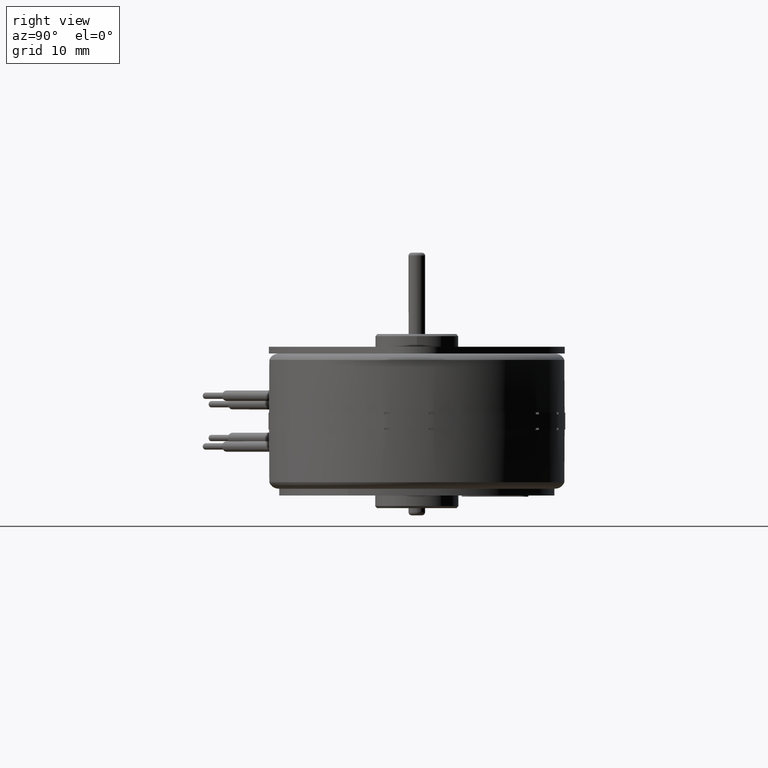
[diagram: clean part render]
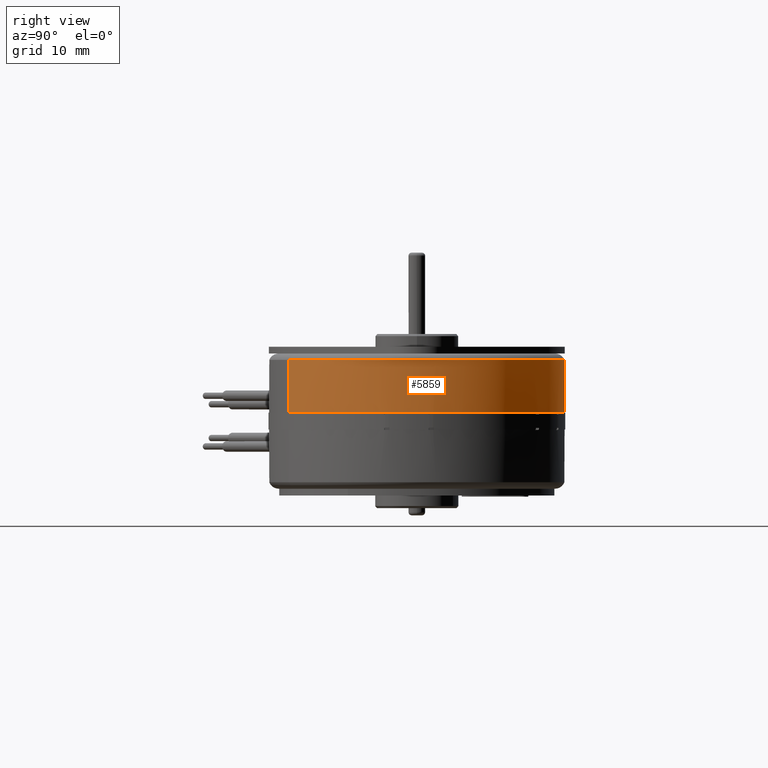
[diagram: same view with one face highlighted and labeled with its STEP entity id]
A machine part, right view. The second image highlights one B-rep face of the part: STEP entity #5859.
In plain terms, the highlighted cylindrical surface (partial cylindrical patch) has radius 17.7673 mm, axis along (0, 0, -1).
Its self-contained STEP definition (entity closure, byte-faithful):
#1360=CARTESIAN_POINT('',(0.E0,0.E0,4.000000000002E-2));
#1361=DIRECTION('',(0.E0,0.E0,1.E0));
#1362=DIRECTION('',(2.971786792448E-1,9.548218852762E-1,0.E0));
#1363=AXIS2_PLACEMENT_3D('',#1360,#1361,#1362);
#1408=CARTESIAN_POINT('',(0.E0,0.E0,4.000000000002E-2));
#1409=DIRECTION('',(0.E0,0.E0,1.E0));
#1410=DIRECTION('',(5.684213785240E-1,8.227375866197E-1,0.E0));
#1411=AXIS2_PLACEMENT_3D('',#1408,#1409,#1410);
#1426=DIRECTION('',(6.661338147766E-13,-3.330669073883E-13,1.E0));
#1427=VECTOR('',#1426,1.999999999996E-3);
#1428=CARTESIAN_POINT('',(6.947060848518E-1,8.175393366622E-2,
4.000000000001E-2));
#1429=LINE('',#1428,#1427);
#1430=DIRECTION('',(0.E0,4.163336342356E-13,-1.E0));
#1431=VECTOR('',#1430,1.999999999994E-3);
#1432=CARTESIAN_POINT('',(6.972072767762E-1,5.658854310196E-2,4.2E-2));
#1433=LINE('',#1432,#1431);
#1434=DIRECTION('',(1.609823385710E-12,9.103828801946E-12,1.E0));
#1435=VECTOR('',#1434,1.999999999996E-3);
#1436=CARTESIAN_POINT('',(6.874727889150E-1,-1.291565503624E-1,
4.000000000001E-2));
#1437=LINE('',#1436,#1435);
#1438=DIRECTION('',(-6.106226635455E-13,-2.317590563911E-12,-1.E0));
#1439=VECTOR('',#1438,1.999999999994E-3);
#1440=CARTESIAN_POINT('',(6.823547991785E-1,-1.539226365358E-1,4.2E-2));
#1441=LINE('',#1440,#1439);
#1442=DIRECTION('',(1.221245327090E-11,-3.275157922651E-12,1.E0));
#1443=VECTOR('',#1442,1.999999999996E-3);
#1444=CARTESIAN_POINT('',(2.078764861318E-1,6.678979087507E-1,
4.000000000001E-2));
#1445=LINE('',#1444,#1443);
#1446=DIRECTION('',(-5.023759186443E-12,1.831867990637E-12,-1.E0));
#1447=VECTOR('',#1446,1.999999999994E-3);
#1448=CARTESIAN_POINT('',(2.318835407785E-1,6.599471747921E-1,4.2E-2));
#1449=LINE('',#1448,#1447);
#1450=DIRECTION('',(3.330669073883E-13,2.220446049255E-13,1.E0));
#1451=VECTOR('',#1450,1.999999999996E-3);
#1452=CARTESIAN_POINT('',(3.976107542776E-1,5.755049418405E-1,
4.000000000001E-2));
#1453=LINE('',#1452,#1451);
#1454=DIRECTION('',(1.043609643151E-11,-7.882583474860E-12,-1.E0));
#1455=VECTOR('',#1454,1.999999999994E-3);
#1456=CARTESIAN_POINT('',(4.181540258403E-1,5.607561508121E-1,4.2E-2));
#1457=LINE('',#1456,#1455);
#1458=CARTESIAN_POINT('',(0.E0,0.E0,4.000000000002E-2));
#1459=DIRECTION('',(0.E0,0.E0,1.E0));
#1460=DIRECTION('',(9.931466545415E-1,1.168748158202E-1,0.E0));
#1461=AXIS2_PLACEMENT_3D('',#1458,#1459,#1460);
#1497=CARTESIAN_POINT('',(0.E0,0.E0,4.200000000001E-2));
#1498=DIRECTION('',(0.E0,0.E0,1.E0));
#1499=DIRECTION('',(5.977898868338E-1,8.016528246063E-1,0.E0));
#1500=AXIS2_PLACEMENT_3D('',#1497,#1498,#1499);
#1563=CARTESIAN_POINT('',(0.E0,0.E0,4.000000000002E-2));
#1564=DIRECTION('',(0.E0,0.E0,1.E0));
#1565=DIRECTION('',(9.828059884417E-1,-1.846412442636E-1,0.E0));
#1566=AXIS2_PLACEMENT_3D('',#1563,#1564,#1565);
#1603=CARTESIAN_POINT('',(0.E0,0.E0,4.000000000002E-2));
#1604=DIRECTION('',(0.E0,0.E0,1.E0));
#1605=DIRECTION('',(5.E-1,-8.660254037844E-1,0.E0));
#1606=AXIS2_PLACEMENT_3D('',#1603,#1604,#1605);
#1673=DIRECTION('',(2.258063730110E-13,9.833144519297E-14,1.E0));
#1674=VECTOR('',#1673,2.495227116419E-1);
#1675=CARTESIAN_POINT('',(-3.497499999999E-1,6.057847699472E-1,
4.000000000001E-2));
#1676=LINE('',#1675,#1674);
#1677=DIRECTION('',(-9.521687453075E-14,-8.676303987615E-14,-1.E0));
#1678=VECTOR('',#1677,2.495227116419E-1);
#1679=CARTESIAN_POINT('',(3.4975E-1,-6.057847699472E-1,2.895227116419E-1));
#1680=LINE('',#1679,#1678);
#2604=CARTESIAN_POINT('',(0.E0,0.E0,2.895227116419E-1));
#2605=DIRECTION('',(0.E0,0.E0,-1.E0));
#2606=DIRECTION('',(-4.999999999999E-1,8.660254037845E-1,0.E0));
#2607=AXIS2_PLACEMENT_3D('',#2604,#2605,#2606);
#2619=CARTESIAN_POINT('',(0.E0,0.E0,4.200000000001E-2));
#2620=DIRECTION('',(0.E0,0.E0,1.E0));
#2621=DIRECTION('',(9.754893483609E-1,-2.200466569489E-1,0.E0));
#2622=AXIS2_PLACEMENT_3D('',#2619,#2620,#2621);
#2633=CARTESIAN_POINT('',(0.E0,0.E0,4.200000000001E-2));
#2634=DIRECTION('',(0.E0,0.E0,1.E0));
#2635=DIRECTION('',(9.967223399230E-1,8.089856054603E-2,0.E0));
#2636=AXIS2_PLACEMENT_3D('',#2633,#2634,#2635);
#2647=CARTESIAN_POINT('',(0.E0,0.E0,4.200000000001E-2));
#2648=DIRECTION('',(0.E0,0.E0,1.E0));
#2649=DIRECTION('',(3.314989861022E-1,9.434555751137E-1,0.E0));
#2650=AXIS2_PLACEMENT_3D('',#2647,#2648,#2649);
#3528=CARTESIAN_POINT('',(-3.497499999999E-1,6.057847699473E-1,
2.895227116419E-1));
#3529=VERTEX_POINT('',#3528);
#3530=CARTESIAN_POINT('',(3.4975E-1,-6.057847699472E-1,2.895227116419E-1));
#3531=VERTEX_POINT('',#3530);
#3533=CARTESIAN_POINT('',(3.4975E-1,-6.057847699472E-1,4.000000000002E-2));
#3535=VERTEX_POINT('',#3533);
#3575=CARTESIAN_POINT('',(-3.4975E-1,6.057847699472E-1,4.000000000002E-2));
#3576=VERTEX_POINT('',#3575);
#3577=CARTESIAN_POINT('',(6.823547991785E-1,-1.539226365358E-1,
4.000000000002E-2));
#3578=VERTEX_POINT('',#3577);
#3585=CARTESIAN_POINT('',(6.947060848518E-1,8.175393366622E-2,
4.000000000002E-2));
#3586=CARTESIAN_POINT('',(4.181540258403E-1,5.607561508121E-1,
4.000000000002E-2));
#3587=VERTEX_POINT('',#3585);
#3588=VERTEX_POINT('',#3586);
#3589=CARTESIAN_POINT('',(6.947060848518E-1,8.175393366622E-2,4.2E-2));
#3590=VERTEX_POINT('',#3589);
#3591=CARTESIAN_POINT('',(6.972072767761E-1,5.658854310195E-2,
4.200000000001E-2));
#3592=VERTEX_POINT('',#3591);
#3593=CARTESIAN_POINT('',(6.972072767762E-1,5.658854310196E-2,
4.000000000001E-2));
#3594=VERTEX_POINT('',#3593);
#3595=CARTESIAN_POINT('',(6.874727889149E-1,-1.291565503624E-1,
4.000000000002E-2));
#3596=VERTEX_POINT('',#3595);
#3597=CARTESIAN_POINT('',(6.874727889150E-1,-1.291565503624E-1,4.2E-2));
#3598=VERTEX_POINT('',#3597);
#3599=CARTESIAN_POINT('',(6.823547991785E-1,-1.539226365358E-1,
4.200000000001E-2));
#3600=VERTEX_POINT('',#3599);
#3601=CARTESIAN_POINT('',(2.078764861317E-1,6.678979087507E-1,
4.000000000002E-2));
#3602=VERTEX_POINT('',#3601);
#3603=CARTESIAN_POINT('',(2.078764861318E-1,6.678979087507E-1,4.2E-2));
#3604=VERTEX_POINT('',#3603);
#3605=CARTESIAN_POINT('',(2.318835407785E-1,6.599471747921E-1,
4.200000000001E-2));
#3606=VERTEX_POINT('',#3605);
#3607=CARTESIAN_POINT('',(2.318835407785E-1,6.599471747921E-1,
4.000000000001E-2));
#3608=VERTEX_POINT('',#3607);
#3609=CARTESIAN_POINT('',(3.976107542776E-1,5.755049418405E-1,
4.000000000002E-2));
#3610=VERTEX_POINT('',#3609);
#3611=CARTESIAN_POINT('',(3.976107542776E-1,5.755049418405E-1,4.2E-2));
#3612=VERTEX_POINT('',#3611);
#3613=CARTESIAN_POINT('',(4.181540258402E-1,5.607561508121E-1,
4.200000000001E-2));
#3614=VERTEX_POINT('',#3613);
#5816=CARTESIAN_POINT('',(0.E0,0.E0,2.945131658747E-1));
#5817=DIRECTION('',(0.E0,0.E0,-1.E0));
#5818=DIRECTION('',(5.E-1,-8.660254037844E-1,0.E0));
#5819=AXIS2_PLACEMENT_3D('',#5816,#5817,#5818);
#5820=CYLINDRICAL_SURFACE('',#5819,6.995E-1);
#5822=ORIENTED_EDGE('',*,*,#5821,.F.);
#5824=ORIENTED_EDGE('',*,*,#5823,.T.);
#5826=ORIENTED_EDGE('',*,*,#5825,.F.);
#5828=ORIENTED_EDGE('',*,*,#5827,.T.);
#5830=ORIENTED_EDGE('',*,*,#5829,.F.);
#5832=ORIENTED_EDGE('',*,*,#5831,.T.);
#5834=ORIENTED_EDGE('',*,*,#5833,.F.);
#5836=ORIENTED_EDGE('',*,*,#5835,.T.);
#5838=ORIENTED_EDGE('',*,*,#5837,.F.);
#5840=ORIENTED_EDGE('',*,*,#5839,.F.);
#5842=ORIENTED_EDGE('',*,*,#5841,.F.);
#5844=ORIENTED_EDGE('',*,*,#5843,.F.);
#5845=ORIENTED_EDGE('',*,*,#5731,.F.);
#5846=ORIENTED_EDGE('',*,*,#5748,.T.);
#5848=ORIENTED_EDGE('',*,*,#5847,.F.);
#5849=ORIENTED_EDGE('',*,*,#5795,.T.);
#5850=ORIENTED_EDGE('',*,*,#5807,.F.);
#5852=ORIENTED_EDGE('',*,*,#5851,.T.);
#5854=ORIENTED_EDGE('',*,*,#5853,.F.);
#5856=ORIENTED_EDGE('',*,*,#5855,.T.);
#5857=EDGE_LOOP('',(#5822,#5824,#5826,#5828,#5830,#5832,#5834,#5836,#5838,#5840,
#5842,#5844,#5845,#5846,#5848,#5849,#5850,#5852,#5854,#5856));
#5858=FACE_OUTER_BOUND('',#5857,.F.);
#5859=ADVANCED_FACE('',(#5858),#5820,.T.);
#1364=CIRCLE('',#1363,6.995E-1);
#1412=CIRCLE('',#1411,6.995E-1);
#1462=CIRCLE('',#1461,6.995E-1);
#1501=CIRCLE('',#1500,6.995E-1);
#1567=CIRCLE('',#1566,6.995E-1);
#1607=CIRCLE('',#1606,6.995E-1);
#2608=CIRCLE('',#2607,6.995E-1);
#2623=CIRCLE('',#2622,6.995E-1);
#2637=CIRCLE('',#2636,6.995E-1);
#2651=CIRCLE('',#2650,6.995E-1);
#5731=EDGE_CURVE('',#3602,#3576,#1364,.T.);
#5748=EDGE_CURVE('',#3602,#3604,#1445,.T.);
#5795=EDGE_CURVE('',#3606,#3608,#1449,.T.);
#5807=EDGE_CURVE('',#3610,#3608,#1412,.T.);
#5821=EDGE_CURVE('',#3587,#3588,#1462,.T.);
#5823=EDGE_CURVE('',#3587,#3590,#1429,.T.);
#5825=EDGE_CURVE('',#3592,#3590,#2637,.T.);
#5827=EDGE_CURVE('',#3592,#3594,#1433,.T.);
#5829=EDGE_CURVE('',#3596,#3594,#1567,.T.);
#5831=EDGE_CURVE('',#3596,#3598,#1437,.T.);
#5833=EDGE_CURVE('',#3600,#3598,#2623,.T.);
#5835=EDGE_CURVE('',#3600,#3578,#1441,.T.);
#5837=EDGE_CURVE('',#3535,#3578,#1607,.T.);
#5839=EDGE_CURVE('',#3531,#3535,#1680,.T.);
#5841=EDGE_CURVE('',#3529,#3531,#2608,.T.);
#5843=EDGE_CURVE('',#3576,#3529,#1676,.T.);
#5847=EDGE_CURVE('',#3606,#3604,#2651,.T.);
#5851=EDGE_CURVE('',#3610,#3612,#1453,.T.);
#5853=EDGE_CURVE('',#3614,#3612,#1501,.T.);
#5855=EDGE_CURVE('',#3614,#3588,#1457,.T.);